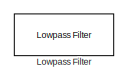
[diagram: root canvas - part 1/6, top center region]
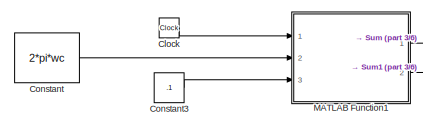
[diagram: root canvas - part 2/6, top center region]
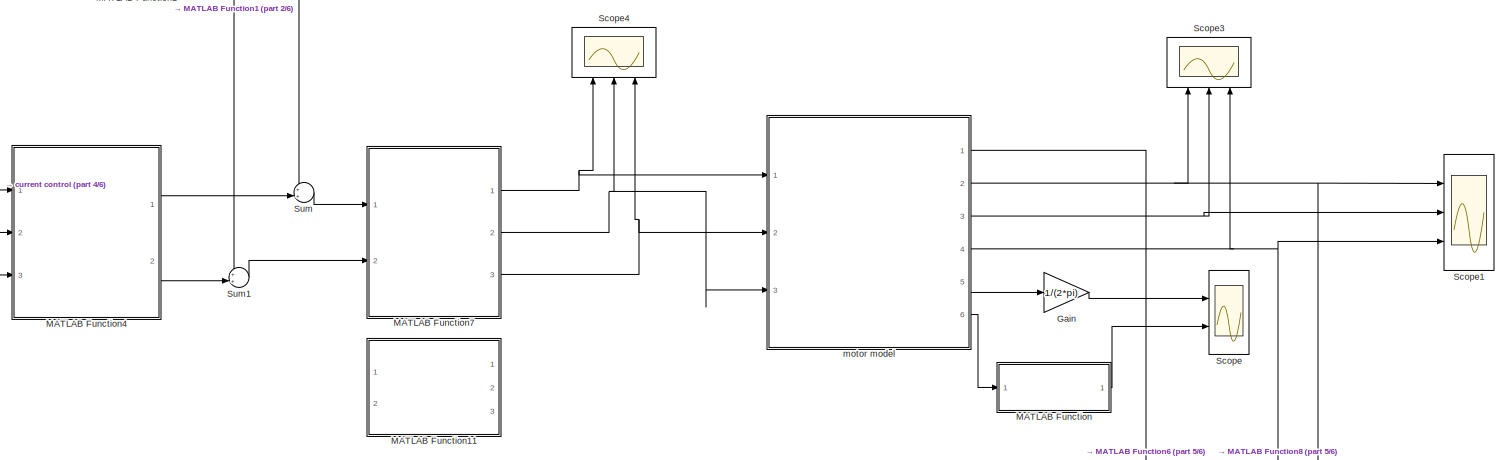
[diagram: root canvas - part 3/6, top right region]
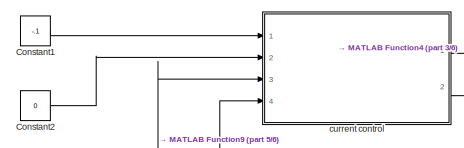
[diagram: root canvas - part 4/6, top left region]
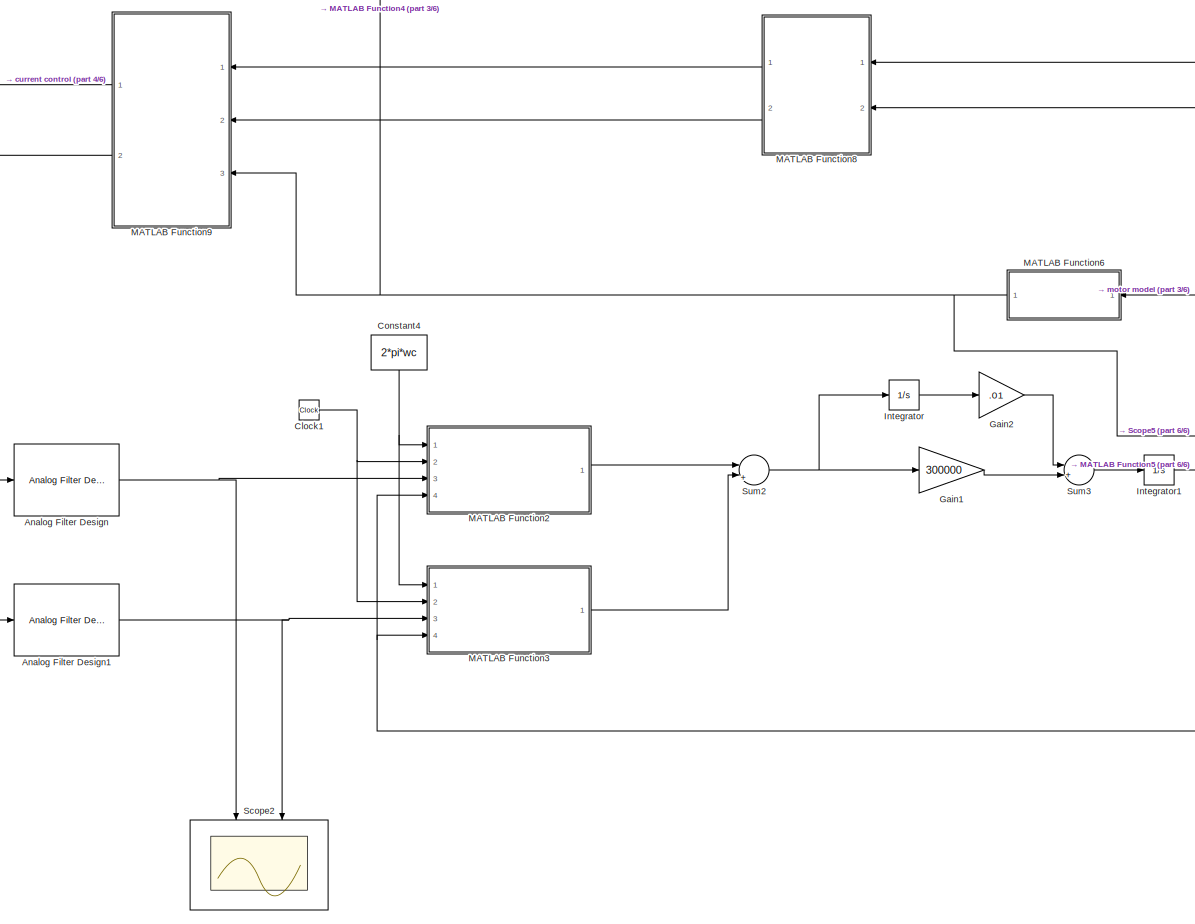
[diagram: root canvas - part 5/6, bottom center region]
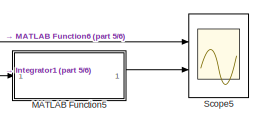
[diagram: root canvas - part 6/6, bottom right region]
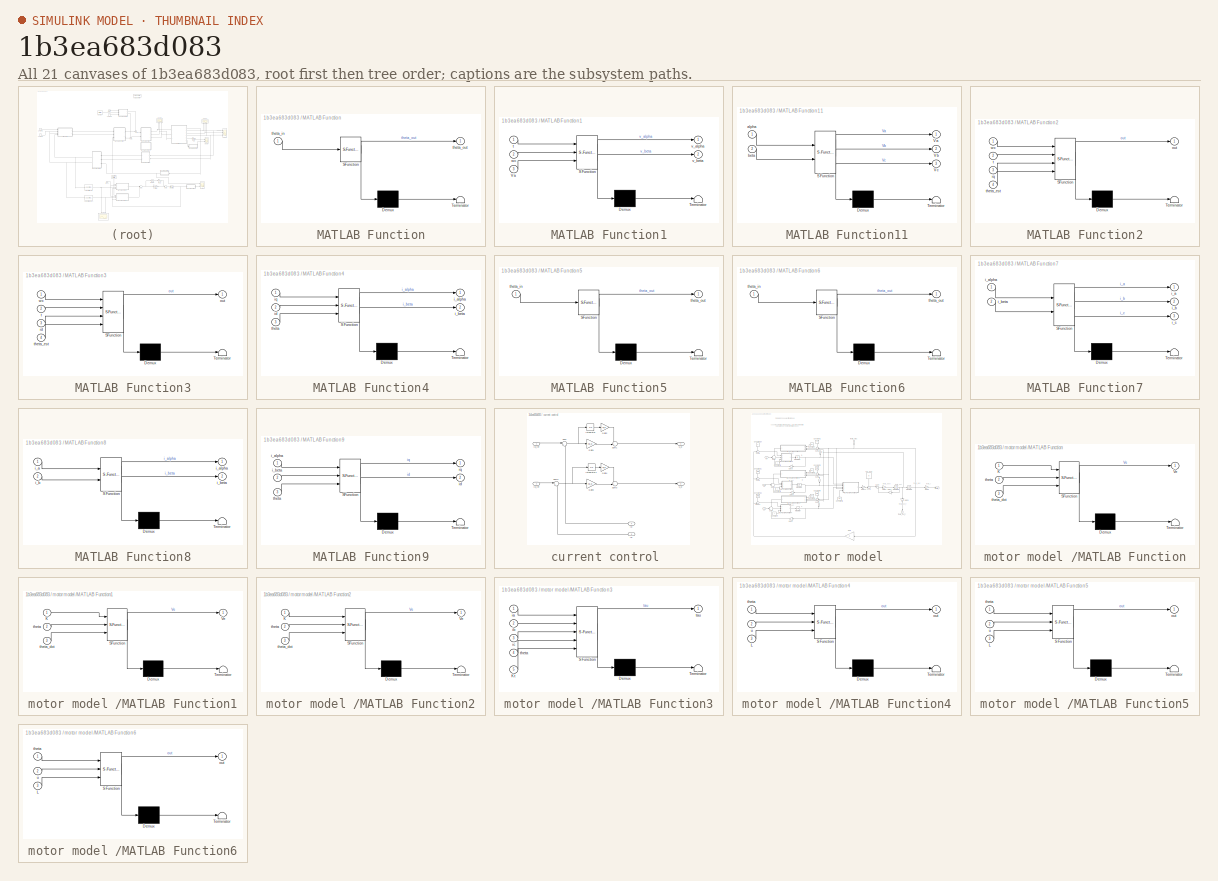
[diagram: thumbnail index - all 21 canvases of the model, root first then tree order]
MODEL slx_1b3ea683d083
KIND model
CONFIG AbsTol = auto
CONFIG FixedStep = .000001
CONFIG MaxStep = .00001
CONFIG MinStep = auto
CONFIG RelTol = 1e-3
CONFIG SampleTimeConstraint = Unconstrained
CONFIG Solver = FixedStepAuto
CONFIG SolverMode = Auto
CONFIG SolverName = FixedStepAuto
CONFIG StartTime = 0.0
CONFIG StopTime = .5
BLOCK [Reference] Analog Filter Design  REF=dsparch4/Analog
Filter Design
  Ports = [1, 1]
  SourceBlock = dsparch4/Analog\nFilter Design
  SourceType = Analog Filter Design
BLOCK [Reference] Analog Filter Design1  REF=dsparch4/Analog
Filter Design
  Ports = [1, 1]
  SourceBlock = dsparch4/Analog\nFilter Design
  SourceType = Analog Filter Design
BLOCK [Clock] Clock
  Decimation = 2000
BLOCK [Clock] Clock1
  Decimation = 10000
BLOCK [Constant] Constant
  Value = 2*pi*wc
BLOCK [Constant] Constant1
  Value = -.1
BLOCK [Constant] Constant2
  Value = 0
BLOCK [Constant] Constant3
  Value = .1
BLOCK [Constant] Constant4
  Value = 2*pi*wc
BLOCK [Gain] Gain
  Gain = 1/(2*pi)
  OutDataTypeStr = Inherit: Inherit via internal rule
  ParamDataTypeStr = Inherit: Inherit via internal rule
  SaturateOnIntegerOverflow = off
BLOCK [Gain] Gain1
  Gain = 300000
  OutDataTypeStr = Inherit: Inherit via internal rule
  ParamDataTypeStr = Inherit: Inherit via internal rule
  SaturateOnIntegerOverflow = off
BLOCK [Gain] Gain2
  Gain = .01
  OutDataTypeStr = Inherit: Inherit via internal rule
  ParamDataTypeStr = Inherit: Inherit via internal rule
  SaturateOnIntegerOverflow = off
BLOCK [Integrator] Integrator
  Ports = [1, 1]
BLOCK [Integrator] Integrator1
  Ports = [1, 1]
BLOCK [Reference] Lowpass Filter  REF=dspfdesign/Lowpass Filter
  Commented = on
  Ports = [1, 1]
  SourceBlock = dspfdesign/Lowpass Filter
  SourceType = dsp.LowpassFilter
BLOCK [SubSystem] MATLAB Function
  ErrorFcn = Stateflow.Translate.translate
  PermitHierarchicalResolution = ExplicitOnly
  Ports = [1, 1]
  RequestExecContextInheritance = off
  SFBlockType = MATLAB Function
  TreatAsAtomicUnit = on
  Variant = off
BLOCK [Demux] MATLAB Function/ Demux 
  Outputs = 1
  Ports = [1, 1]
BLOCK [S-Function] MATLAB Function/ SFunction 
  EnableBusSupport = on
  FunctionName = sf_sfun
  PortCounts = [1 2]
  Ports = [1, 2]
  SFunctionDeploymentMode = off
  Tag = Stateflow S-Function motor_sim_signal_injection 6
BLOCK [Terminator] MATLAB Function/ Terminator 
BLOCK [Inport] MATLAB Function/theta_in
  IconDisplay = Port number
BLOCK [Outport] MATLAB Function/theta_out
  IconDisplay = Port number
BLOCK [SubSystem] MATLAB Function1
  ErrorFcn = Stateflow.Translate.translate
  PermitHierarchicalResolution = ExplicitOnly
  Ports = [3, 2]
  RequestExecContextInheritance = off
  SFBlockType = MATLAB Function
  TreatAsAtomicUnit = on
  Variant = off
BLOCK [Demux] MATLAB Function1/ Demux 
  Outputs = 1
  Ports = [1, 1]
BLOCK [S-Function] MATLAB Function1/ SFunction 
  EnableBusSupport = on
  FunctionName = sf_sfun
  PortCounts = [3 3]
  Ports = [3, 3]
  SFunctionDeploymentMode = off
  Tag = Stateflow S-Function motor_sim_signal_injection 12
BLOCK [Terminator] MATLAB Function1/ Terminator 
BLOCK [Inport] MATLAB Function1/Va
  IconDisplay = Port number
  Port = 3
BLOCK [Inport] MATLAB Function1/t
  IconDisplay = Port number
BLOCK [Outport] MATLAB Function1/v_alpha
  IconDisplay = Port number
BLOCK [Outport] MATLAB Function1/v_beta
  IconDisplay = Port number
  Port = 2
BLOCK [Inport] MATLAB Function1/wc
  IconDisplay = Port number
  Port = 2
BLOCK [SubSystem] MATLAB Function11
  Commented = on
  ErrorFcn = Stateflow.Translate.translate
  PermitHierarchicalResolution = ExplicitOnly
  Ports = [2, 3]
  RequestExecContextInheritance = off
  SFBlockType = MATLAB Function
  TreatAsAtomicUnit = on
  Variant = off
BLOCK [Demux] MATLAB Function11/ Demux 
  Outputs = 1
  Ports = [1, 1]
BLOCK [S-Function] MATLAB Function11/ SFunction 
  EnableBusSupport = on
  FunctionName = sf_sfun
  PortCounts = [2 4]
  Ports = [2, 4]
  SFunctionDeploymentMode = off
  Tag = Stateflow S-Function motor_sim_signal_injection 16
BLOCK [Terminator] MATLAB Function11/ Terminator 
BLOCK [Outport] MATLAB Function11/Va
  IconDisplay = Port number
BLOCK [Outport] MATLAB Function11/Vb
  IconDisplay = Port number
  Port = 2
BLOCK [Outport] MATLAB Function11/Vc
  IconDisplay = Port number
  Port = 3
BLOCK [Inport] MATLAB Function11/alpha
  IconDisplay = Port number
BLOCK [Inport] MATLAB Function11/beta
  IconDisplay = Port number
  Port = 2
BLOCK [SubSystem] MATLAB Function2
  ErrorFcn = Stateflow.Translate.translate
  PermitHierarchicalResolution = ExplicitOnly
  Ports = [4, 1]
  RequestExecContextInheritance = off
  SFBlockType = MATLAB Function
  TreatAsAtomicUnit = on
  Variant = off
BLOCK [Demux] MATLAB Function2/ Demux 
  Outputs = 1
  Ports = [1, 1]
BLOCK [S-Function] MATLAB Function2/ SFunction 
  EnableBusSupport = on
  FunctionName = sf_sfun
  PortCounts = [4 2]
  Ports = [4, 2]
  SFunctionDeploymentMode = off
  Tag = Stateflow S-Function motor_sim_signal_injection 13
BLOCK [Terminator] MATLAB Function2/ Terminator 
BLOCK [Inport] MATLAB Function2/iq
  IconDisplay = Port number
  Port = 3
BLOCK [Outport] MATLAB Function2/out
  IconDisplay = Port number
BLOCK [Inport] MATLAB Function2/t
  IconDisplay = Port number
  Port = 2
BLOCK [Inport] MATLAB Function2/theta_est
  IconDisplay = Port number
  Port = 4
BLOCK [Inport] MATLAB Function2/wc
  IconDisplay = Port number
BLOCK [SubSystem] MATLAB Function3
  ErrorFcn = Stateflow.Translate.translate
  PermitHierarchicalResolution = ExplicitOnly
  Ports = [4, 1]
  RequestExecContextInheritance = off
  SFBlockType = MATLAB Function
  TreatAsAtomicUnit = on
  Variant = off
BLOCK [Demux] MATLAB Function3/ Demux 
  Outputs = 1
  Ports = [1, 1]
BLOCK [S-Function] MATLAB Function3/ SFunction 
  EnableBusSupport = on
  FunctionName = sf_sfun
  PortCounts = [4 2]
  Ports = [4, 2]
  SFunctionDeploymentMode = off
  Tag = Stateflow S-Function motor_sim_signal_injection 17
BLOCK [Terminator] MATLAB Function3/ Terminator 
BLOCK [Inport] MATLAB Function3/id
  IconDisplay = Port number
  Port = 3
BLOCK [Outport] MATLAB Function3/out
  IconDisplay = Port number
BLOCK [Inport] MATLAB Function3/t
  IconDisplay = Port number
  Port = 2
BLOCK [Inport] MATLAB Function3/theta_est
  IconDisplay = Port number
  Port = 4
BLOCK [Inport] MATLAB Function3/wc
  IconDisplay = Port number
BLOCK [SubSystem] MATLAB Function4
  ErrorFcn = Stateflow.Translate.translate
  PermitHierarchicalResolution = ExplicitOnly
  Ports = [3, 2]
  RequestExecContextInheritance = off
  SFBlockType = MATLAB Function
  TreatAsAtomicUnit = on
  Variant = off
BLOCK [Demux] MATLAB Function4/ Demux 
  Outputs = 1
  Ports = [1, 1]
BLOCK [S-Function] MATLAB Function4/ SFunction 
  EnableBusSupport = on
  FunctionName = sf_sfun
  PortCounts = [3 3]
  Ports = [3, 3]
  SFunctionDeploymentMode = off
  Tag = Stateflow S-Function motor_sim_signal_injection 5
BLOCK [Terminator] MATLAB Function4/ Terminator 
BLOCK [Outport] MATLAB Function4/i_alpha
  IconDisplay = Port number
BLOCK [Outport] MATLAB Function4/i_beta
  IconDisplay = Port number
  Port = 2
BLOCK [Inport] MATLAB Function4/id
  IconDisplay = Port number
  Port = 2
BLOCK [Inport] MATLAB Function4/iq
  IconDisplay = Port number
BLOCK [Inport] MATLAB Function4/theta
  IconDisplay = Port number
  Port = 3
BLOCK [SubSystem] MATLAB Function5
  ErrorFcn = Stateflow.Translate.translate
  PermitHierarchicalResolution = ExplicitOnly
  Ports = [1, 1]
  RequestExecContextInheritance = off
  SFBlockType = MATLAB Function
  TreatAsAtomicUnit = on
  Variant = off
BLOCK [Demux] MATLAB Function5/ Demux 
  Outputs = 1
  Ports = [1, 1]
BLOCK [S-Function] MATLAB Function5/ SFunction 
  EnableBusSupport = on
  FunctionName = sf_sfun
  PortCounts = [1 2]
  Ports = [1, 2]
  SFunctionDeploymentMode = off
  Tag = Stateflow S-Function motor_sim_signal_injection 18
BLOCK [Terminator] MATLAB Function5/ Terminator 
BLOCK [Inport] MATLAB Function5/theta_in
  IconDisplay = Port number
BLOCK [Outport] MATLAB Function5/theta_out
  IconDisplay = Port number
BLOCK [SubSystem] MATLAB Function6
  ErrorFcn = Stateflow.Translate.translate
  PermitHierarchicalResolution = ExplicitOnly
  Ports = [1, 1]
  RequestExecContextInheritance = off
  SFBlockType = MATLAB Function
  TreatAsAtomicUnit = on
  Variant = off
BLOCK [Demux] MATLAB Function6/ Demux 
  Outputs = 1
  Ports = [1, 1]
BLOCK [S-Function] MATLAB Function6/ SFunction 
  EnableBusSupport = on
  FunctionName = sf_sfun
  PortCounts = [1 2]
  Ports = [1, 2]
  SFunctionDeploymentMode = off
  Tag = Stateflow S-Function motor_sim_signal_injection 14
BLOCK [Terminator] MATLAB Function6/ Terminator 
BLOCK [Inport] MATLAB Function6/theta_in
  IconDisplay = Port number
BLOCK [Outport] MATLAB Function6/theta_out
  IconDisplay = Port number
BLOCK [SubSystem] MATLAB Function7
  ErrorFcn = Stateflow.Translate.translate
  PermitHierarchicalResolution = ExplicitOnly
  Ports = [2, 3]
  RequestExecContextInheritance = off
  SFBlockType = MATLAB Function
  TreatAsAtomicUnit = on
  Variant = off
BLOCK [Demux] MATLAB Function7/ Demux 
  Outputs = 1
  Ports = [1, 1]
BLOCK [S-Function] MATLAB Function7/ SFunction 
  EnableBusSupport = on
  FunctionName = sf_sfun
  PortCounts = [2 4]
  Ports = [2, 4]
  SFunctionDeploymentMode = off
  Tag = Stateflow S-Function motor_sim_signal_injection 8
BLOCK [Terminator] MATLAB Function7/ Terminator 
BLOCK [Outport] MATLAB Function7/i_a
  IconDisplay = Port number
BLOCK [Inport] MATLAB Function7/i_alpha
  IconDisplay = Port number
BLOCK [Outport] MATLAB Function7/i_b
  IconDisplay = Port number
  Port = 2
BLOCK [Inport] MATLAB Function7/i_beta
  IconDisplay = Port number
  Port = 2
BLOCK [Outport] MATLAB Function7/i_c
  IconDisplay = Port number
  Port = 3
BLOCK [SubSystem] MATLAB Function8
  ErrorFcn = Stateflow.Translate.translate
  PermitHierarchicalResolution = ExplicitOnly
  Ports = [2, 2]
  RequestExecContextInheritance = off
  SFBlockType = MATLAB Function
  TreatAsAtomicUnit = on
  Variant = off
BLOCK [Demux] MATLAB Function8/ Demux 
  Outputs = 1
  Ports = [1, 1]
BLOCK [S-Function] MATLAB Function8/ SFunction 
  EnableBusSupport = on
  FunctionName = sf_sfun
  PortCounts = [2 3]
  Ports = [2, 3]
  SFunctionDeploymentMode = off
  Tag = Stateflow S-Function motor_sim_signal_injection 9
BLOCK [Terminator] MATLAB Function8/ Terminator 
BLOCK [Inport] MATLAB Function8/i_a
  IconDisplay = Port number
BLOCK [Outport] MATLAB Function8/i_alpha
  IconDisplay = Port number
BLOCK [Inport] MATLAB Function8/i_b
  IconDisplay = Port number
  Port = 2
BLOCK [Outport] MATLAB Function8/i_beta
  IconDisplay = Port number
  Port = 2
BLOCK [SubSystem] MATLAB Function9
  ErrorFcn = Stateflow.Translate.translate
  PermitHierarchicalResolution = ExplicitOnly
  Ports = [3, 2]
  RequestExecContextInheritance = off
  SFBlockType = MATLAB Function
  TreatAsAtomicUnit = on
  Variant = off
BLOCK [Demux] MATLAB Function9/ Demux 
  Outputs = 1
  Ports = [1, 1]
BLOCK [S-Function] MATLAB Function9/ SFunction 
  EnableBusSupport = on
  FunctionName = sf_sfun
  PortCounts = [3 3]
  Ports = [3, 3]
  SFunctionDeploymentMode = off
  Tag = Stateflow S-Function motor_sim_signal_injection 10
BLOCK [Terminator] MATLAB Function9/ Terminator 
BLOCK [Inport] MATLAB Function9/i_alpha
  IconDisplay = Port number
BLOCK [Inport] MATLAB Function9/i_beta
  IconDisplay = Port number
  Port = 2
BLOCK [Outport] MATLAB Function9/id
  IconDisplay = Port number
  Port = 2
BLOCK [Outport] MATLAB Function9/iq
  IconDisplay = Port number
BLOCK [Inport] MATLAB Function9/theta
  IconDisplay = Port number
  Port = 3
BLOCK [Scope] Scope
  NumInputPorts = 2
  Ports = [2]
  ScopeSpecificationString = Simulink.scopes.TimeScopeBlockCfg('CurrentConfiguration', extmgr.ConfigurationSet(extmgr.Configuration('Core','General UI',true),extmgr.Configuration('Core','Source UI',true),extmgr.Configuration('Sources','WiredSimulink',true),extmgr.Configuration('Visuals','Time Domain',true,'SerializedDisplays',{struct('MinYLimReal','-4.62643','MaxYLimReal','5.64171','YLabelReal','','MinYLimMag','0.00000','MaxY...<+1424ch>
BLOCK [Scope] Scope1
  NumInputPorts = 3
  Ports = [3]
  ScopeSpecificationString = Simulink.scopes.TimeScopeBlockCfg('CurrentConfiguration', extmgr.ConfigurationSet(extmgr.Configuration('Core','General UI',true),extmgr.Configuration('Core','Source UI',true),extmgr.Configuration('Sources','WiredSimulink',true,'DataLoggingVariableName','ScopeData1'),extmgr.Configuration('Visuals','Time Domain',true,'SerializedDisplays',{struct('MinYLimReal','-0.03348','MaxYLimReal','0.03159','YLab...<+1509ch>
BLOCK [Scope] Scope2
  NumInputPorts = 2
  Ports = [2]
  ScopeSpecificationString = Simulink.scopes.TimeScopeBlockCfg('CurrentConfiguration', extmgr.ConfigurationSet(extmgr.Configuration('Core','General UI',true),extmgr.Configuration('Core','Source UI',true),extmgr.Configuration('Sources','WiredSimulink',true,'DataLoggingVariableName','ScopeData1'),extmgr.Configuration('Visuals','Time Domain',true,'SerializedDisplays',{struct('MinYLimReal','-0.01135','MaxYLimReal','0.01137','YLab...<+1507ch>
BLOCK [Scope] Scope3
  NumInputPorts = 3
  Ports = [3]
  ScopeSpecificationString = Simulink.scopes.TimeScopeBlockCfg('CurrentConfiguration', extmgr.ConfigurationSet(extmgr.Configuration('Core','General UI',true),extmgr.Configuration('Core','Source UI',true),extmgr.Configuration('Sources','WiredSimulink',true,'DataLoggingVariableName','ScopeData1'),extmgr.Configuration('Visuals','Time Domain',true,'SerializedDisplays',{struct('MinYLimReal','-1.26065','MaxYLimReal','7.53281','YLab...<+1470ch>
BLOCK [Scope] Scope4
  NumInputPorts = 3
  Ports = [3]
  ScopeSpecificationString = Simulink.scopes.TimeScopeBlockCfg('CurrentConfiguration', extmgr.ConfigurationSet(extmgr.Configuration('Core','General UI',true),extmgr.Configuration('Core','Source UI',true),extmgr.Configuration('Sources','WiredSimulink',true,'DataLoggingVariableName','ScopeData2'),extmgr.Configuration('Visuals','Time Domain',true,'SerializedDisplays',{struct('MinYLimReal','-0.90736','MaxYLimReal','0.87892','YLab...<+1503ch>
BLOCK [Scope] Scope5
  NumInputPorts = 2
  Ports = [2]
  ScopeSpecificationString = Simulink.scopes.TimeScopeBlockCfg('CurrentConfiguration', extmgr.ConfigurationSet(extmgr.Configuration('Core','General UI',true),extmgr.Configuration('Core','Source UI',true),extmgr.Configuration('Sources','WiredSimulink',true,'DataLoggingVariableName','ScopeData2'),extmgr.Configuration('Visuals','Time Domain',true,'SerializedDisplays',{struct('MinYLimReal','-3.92699','MaxYLimReal','3.92698','YLab...<+1472ch>
BLOCK [Sum] Sum
  IconShape = round
  InputSameDT = off
  Inputs = ++|
  OutDataTypeStr = Inherit: Inherit via internal rule
  Ports = [2, 1]
  SaturateOnIntegerOverflow = off
BLOCK [Sum] Sum1
  IconShape = round
  InputSameDT = off
  Inputs = ++|
  OutDataTypeStr = Inherit: Inherit via internal rule
  Ports = [2, 1]
  SaturateOnIntegerOverflow = off
BLOCK [Sum] Sum2
  IconShape = round
  InputSameDT = off
  Inputs = ||+-|
  OutDataTypeStr = Inherit: Inherit via internal rule
  Ports = [2, 1]
  SaturateOnIntegerOverflow = off
BLOCK [Sum] Sum3
  IconShape = round
  InputSameDT = off
  Inputs = |++||
  OutDataTypeStr = Inherit: Inherit via internal rule
  Ports = [2, 1]
  SaturateOnIntegerOverflow = off
BLOCK [SubSystem] current control 
  Ports = [4, 2]
  RequestExecContextInheritance = off
  Variant = off
BLOCK [Gain] current control /Gain1
  Gain = Kp_q
  OutDataTypeStr = Inherit: Inherit via internal rule
  ParamDataTypeStr = Inherit: Inherit via internal rule
  SaturateOnIntegerOverflow = off
BLOCK [Gain] current control /Gain2
  Gain = Ki_q
  OutDataTypeStr = Inherit: Inherit via internal rule
  ParamDataTypeStr = Inherit: Inherit via internal rule
  SaturateOnIntegerOverflow = off
BLOCK [Gain] current control /Gain3
  Gain = Kp_d
  OutDataTypeStr = Inherit: Inherit via internal rule
  ParamDataTypeStr = Inherit: Inherit via internal rule
  SaturateOnIntegerOverflow = off
BLOCK [Gain] current control /Gain4
  Gain = Ki_d
  OutDataTypeStr = Inherit: Inherit via internal rule
  ParamDataTypeStr = Inherit: Inherit via internal rule
  SaturateOnIntegerOverflow = off
BLOCK [Inport] current control /Id
  IconDisplay = Port number
  Port = 3
BLOCK [Inport] current control /Id_ref
  IconDisplay = Port number
  Port = 2
BLOCK [Integrator] current control /Integrator
  Ports = [1, 1]
BLOCK [Integrator] current control /Integrator1
  Ports = [1, 1]
BLOCK [Inport] current control /Iq
  IconDisplay = Port number
  Port = 4
BLOCK [Inport] current control /Iq_ref
  IconDisplay = Port number
BLOCK [Sum] current control /Sum
  IconShape = round
  InputSameDT = off
  Inputs = |+-
  OutDataTypeStr = Inherit: Inherit via internal rule
  Ports = [2, 1]
  SaturateOnIntegerOverflow = off
BLOCK [Sum] current control /Sum1
  IconShape = round
  InputSameDT = off
  Inputs = ++|
  OutDataTypeStr = Inherit: Inherit via internal rule
  Ports = [2, 1]
  SaturateOnIntegerOverflow = off
BLOCK [Sum] current control /Sum2
  IconShape = round
  InputSameDT = off
  Inputs = |+-
  OutDataTypeStr = Inherit: Inherit via internal rule
  Ports = [2, 1]
  SaturateOnIntegerOverflow = off
BLOCK [Sum] current control /Sum3
  IconShape = round
  InputSameDT = off
  Inputs = ++|
  OutDataTypeStr = Inherit: Inherit via internal rule
  Ports = [2, 1]
  SaturateOnIntegerOverflow = off
BLOCK [Outport] current control /u_d
  IconDisplay = Port number
  Port = 2
BLOCK [Outport] current control /u_q
  IconDisplay = Port number
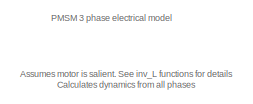
[diagram: motor model  - part 1/4, top left region]
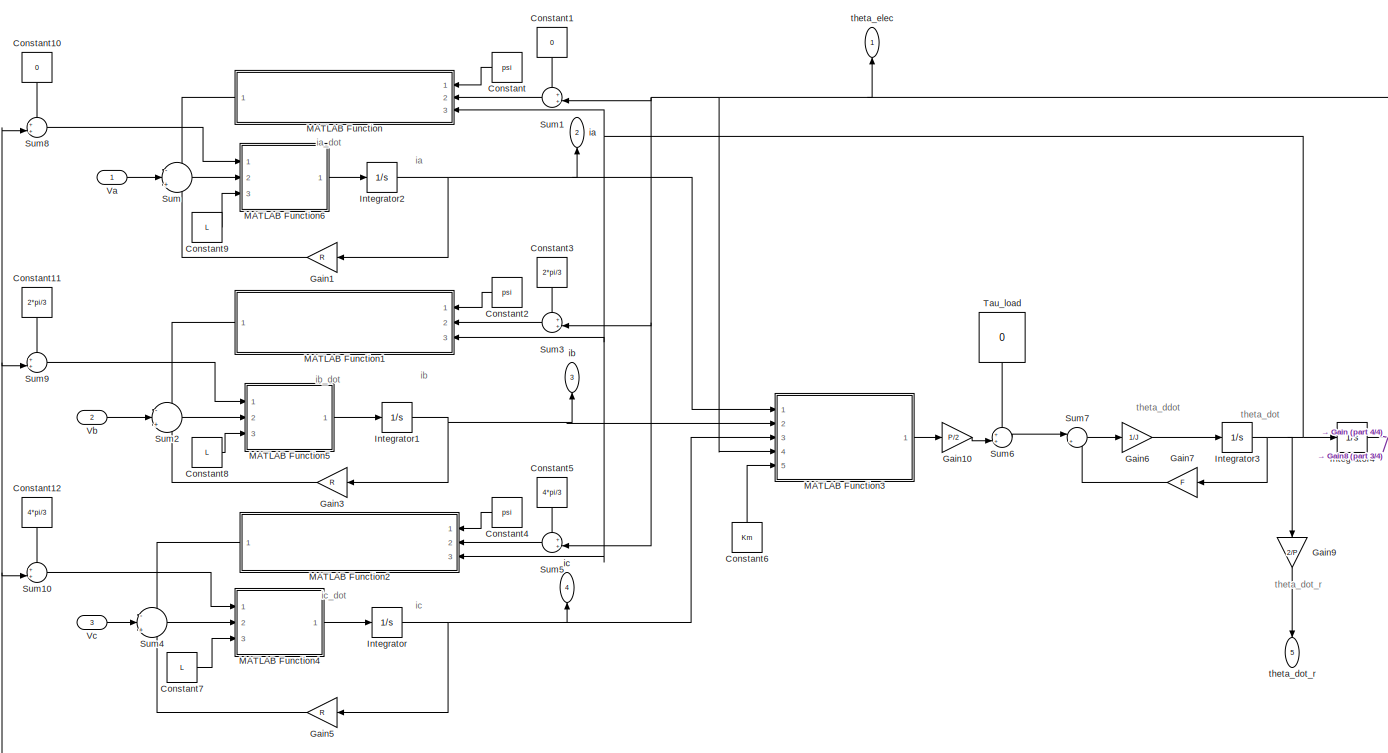
[diagram: motor model  - part 2/4, full width, middle band]
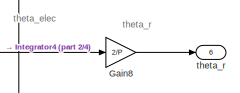
[diagram: motor model  - part 3/4, middle right region]
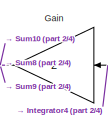
[diagram: motor model  - part 4/4, bottom center region]
BLOCK [SubSystem] motor model 
  Ports = [3, 6]
  RequestExecContextInheritance = off
  Variant = off
BLOCK [Outport] motor model / theta_elec 
  IconDisplay = Port number
BLOCK [Constant] motor model /Constant
  Value = psi
BLOCK [Constant] motor model /Constant1
  Value = 0
BLOCK [Constant] motor model /Constant10
  Value = 0
BLOCK [Constant] motor model /Constant11
  Value = 2*pi/3
BLOCK [Constant] motor model /Constant12
  Value = 4*pi/3
BLOCK [Constant] motor model /Constant2
  Value = psi
BLOCK [Constant] motor model /Constant3
  Value = 2*pi/3
BLOCK [Constant] motor model /Constant4
  Value = psi
BLOCK [Constant] motor model /Constant5
  Value = 4*pi/3
BLOCK [Constant] motor model /Constant6
  Value = Km
BLOCK [Constant] motor model /Constant7
  Value = L
BLOCK [Constant] motor model /Constant8
  Value = L
BLOCK [Constant] motor model /Constant9
  Value = L
BLOCK [Gain] motor model /Gain
  Gain = 2
  OutDataTypeStr = Inherit: Inherit via internal rule
  ParamDataTypeStr = Inherit: Inherit via internal rule
  SaturateOnIntegerOverflow = off
BLOCK [Gain] motor model /Gain1
  Gain = R
  OutDataTypeStr = Inherit: Inherit via internal rule
  ParamDataTypeStr = Inherit: Inherit via internal rule
  SaturateOnIntegerOverflow = off
BLOCK [Gain] motor model /Gain10
  Gain = P/2
  OutDataTypeStr = Inherit: Inherit via internal rule
  ParamDataTypeStr = Inherit: Inherit via internal rule
  SaturateOnIntegerOverflow = off
BLOCK [Gain] motor model /Gain3
  Gain = R
  OutDataTypeStr = Inherit: Inherit via internal rule
  ParamDataTypeStr = Inherit: Inherit via internal rule
  SaturateOnIntegerOverflow = off
BLOCK [Gain] motor model /Gain5
  Gain = R
  OutDataTypeStr = Inherit: Inherit via internal rule
  ParamDataTypeStr = Inherit: Inherit via internal rule
  SaturateOnIntegerOverflow = off
BLOCK [Gain] motor model /Gain6
  Gain = 1/J
  OutDataTypeStr = Inherit: Inherit via internal rule
  ParamDataTypeStr = Inherit: Inherit via internal rule
  SaturateOnIntegerOverflow = off
BLOCK [Gain] motor model /Gain7
  Gain = F
  OutDataTypeStr = Inherit: Inherit via internal rule
  ParamDataTypeStr = Inherit: Inherit via internal rule
  SaturateOnIntegerOverflow = off
BLOCK [Gain] motor model /Gain8
  Gain = 2/P
  OutDataTypeStr = Inherit: Inherit via internal rule
  ParamDataTypeStr = Inherit: Inherit via internal rule
  SaturateOnIntegerOverflow = off
BLOCK [Gain] motor model /Gain9
  Gain = 2/P
  OutDataTypeStr = Inherit: Inherit via internal rule
  ParamDataTypeStr = Inherit: Inherit via internal rule
  SaturateOnIntegerOverflow = off
BLOCK [Integrator] motor model /Integrator
  Ports = [1, 1]
BLOCK [Integrator] motor model /Integrator1
  Ports = [1, 1]
BLOCK [Integrator] motor model /Integrator2
  Ports = [1, 1]
BLOCK [Integrator] motor model /Integrator3
  Ports = [1, 1]
BLOCK [Integrator] motor model /Integrator4
  Ports = [1, 1]
BLOCK [SubSystem] motor model /MATLAB Function
  ErrorFcn = Stateflow.Translate.translate
  PermitHierarchicalResolution = ExplicitOnly
  Ports = [3, 1]
  RequestExecContextInheritance = off
  SFBlockType = MATLAB Function
  TreatAsAtomicUnit = on
  Variant = off
BLOCK [Demux] motor model /MATLAB Function/ Demux 
  Outputs = 1
  Ports = [1, 1]
BLOCK [S-Function] motor model /MATLAB Function/ SFunction 
  EnableBusSupport = on
  FunctionName = sf_sfun
  PortCounts = [3 2]
  Ports = [3, 2]
  SFunctionDeploymentMode = off
  Tag = Stateflow S-Function motor_sim_signal_injection 2
BLOCK [Terminator] motor model /MATLAB Function/ Terminator 
BLOCK [Inport] motor model /MATLAB Function/K
  IconDisplay = Port number
BLOCK [Outport] motor model /MATLAB Function/Ve
  IconDisplay = Port number
BLOCK [Inport] motor model /MATLAB Function/theta
  IconDisplay = Port number
  Port = 2
BLOCK [Inport] motor model /MATLAB Function/theta_dot
  IconDisplay = Port number
  Port = 3
BLOCK [SubSystem] motor model /MATLAB Function1
  ErrorFcn = Stateflow.Translate.translate
  PermitHierarchicalResolution = ExplicitOnly
  Ports = [3, 1]
  RequestExecContextInheritance = off
  SFBlockType = MATLAB Function
  TreatAsAtomicUnit = on
  Variant = off
BLOCK [Demux] motor model /MATLAB Function1/ Demux 
  Outputs = 1
  Ports = [1, 1]
BLOCK [S-Function] motor model /MATLAB Function1/ SFunction 
  EnableBusSupport = on
  FunctionName = sf_sfun
  PortCounts = [3 2]
  Ports = [3, 2]
  SFunctionDeploymentMode = off
  Tag = Stateflow S-Function motor_sim_signal_injection 1
BLOCK [Terminator] motor model /MATLAB Function1/ Terminator 
BLOCK [Inport] motor model /MATLAB Function1/K
  IconDisplay = Port number
BLOCK [Outport] motor model /MATLAB Function1/Ve
  IconDisplay = Port number
BLOCK [Inport] motor model /MATLAB Function1/theta
  IconDisplay = Port number
  Port = 2
BLOCK [Inport] motor model /MATLAB Function1/theta_dot
  IconDisplay = Port number
  Port = 3
BLOCK [SubSystem] motor model /MATLAB Function2
  ErrorFcn = Stateflow.Translate.translate
  PermitHierarchicalResolution = ExplicitOnly
  Ports = [3, 1]
  RequestExecContextInheritance = off
  SFBlockType = MATLAB Function
  TreatAsAtomicUnit = on
  Variant = off
BLOCK [Demux] motor model /MATLAB Function2/ Demux 
  Outputs = 1
  Ports = [1, 1]
BLOCK [S-Function] motor model /MATLAB Function2/ SFunction 
  EnableBusSupport = on
  FunctionName = sf_sfun
  PortCounts = [3 2]
  Ports = [3, 2]
  SFunctionDeploymentMode = off
  Tag = Stateflow S-Function motor_sim_signal_injection 3
BLOCK [Terminator] motor model /MATLAB Function2/ Terminator 
BLOCK [Inport] motor model /MATLAB Function2/K
  IconDisplay = Port number
BLOCK [Outport] motor model /MATLAB Function2/Ve
  IconDisplay = Port number
BLOCK [Inport] motor model /MATLAB Function2/theta
  IconDisplay = Port number
  Port = 2
BLOCK [Inport] motor model /MATLAB Function2/theta_dot
  IconDisplay = Port number
  Port = 3
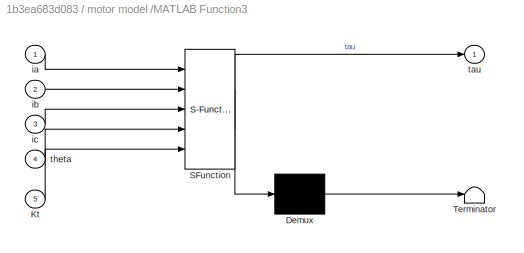
BLOCK [SubSystem] motor model /MATLAB Function3
  ErrorFcn = Stateflow.Translate.translate
  PermitHierarchicalResolution = ExplicitOnly
  Ports = [5, 1]
  RequestExecContextInheritance = off
  SFBlockType = MATLAB Function
  TreatAsAtomicUnit = on
  Variant = off
BLOCK [Demux] motor model /MATLAB Function3/ Demux 
  Outputs = 1
  Ports = [1, 1]
BLOCK [S-Function] motor model /MATLAB Function3/ SFunction 
  EnableBusSupport = on
  FunctionName = sf_sfun
  PortCounts = [5 2]
  Ports = [5, 2]
  SFunctionDeploymentMode = off
  Tag = Stateflow S-Function motor_sim_signal_injection 4
BLOCK [Terminator] motor model /MATLAB Function3/ Terminator 
BLOCK [Inport] motor model /MATLAB Function3/Kt
  IconDisplay = Port number
  Port = 5
BLOCK [Inport] motor model /MATLAB Function3/ia
  IconDisplay = Port number
BLOCK [Inport] motor model /MATLAB Function3/ib
  IconDisplay = Port number
  Port = 2
BLOCK [Inport] motor model /MATLAB Function3/ic
  IconDisplay = Port number
  Port = 3
BLOCK [Outport] motor model /MATLAB Function3/tau
  IconDisplay = Port number
BLOCK [Inport] motor model /MATLAB Function3/theta
  IconDisplay = Port number
  Port = 4
BLOCK [SubSystem] motor model /MATLAB Function4
  ErrorFcn = Stateflow.Translate.translate
  PermitHierarchicalResolution = ExplicitOnly
  Ports = [3, 1]
  RequestExecContextInheritance = off
  SFBlockType = MATLAB Function
  TreatAsAtomicUnit = on
  Variant = off
BLOCK [Demux] motor model /MATLAB Function4/ Demux 
  Outputs = 1
  Ports = [1, 1]
BLOCK [S-Function] motor model /MATLAB Function4/ SFunction 
  EnableBusSupport = on
  FunctionName = sf_sfun
  PortCounts = [3 2]
  Ports = [3, 2]
  SFunctionDeploymentMode = off
  Tag = Stateflow S-Function motor_sim_signal_injection 15
BLOCK [Terminator] motor model /MATLAB Function4/ Terminator 
BLOCK [Inport] motor model /MATLAB Function4/L
  IconDisplay = Port number
  Port = 3
BLOCK [Outport] motor model /MATLAB Function4/out
  IconDisplay = Port number
BLOCK [Inport] motor model /MATLAB Function4/theta
  IconDisplay = Port number
BLOCK [Inport] motor model /MATLAB Function4/u
  IconDisplay = Port number
  Port = 2
BLOCK [SubSystem] motor model /MATLAB Function5
  ErrorFcn = Stateflow.Translate.translate
  PermitHierarchicalResolution = ExplicitOnly
  Ports = [3, 1]
  RequestExecContextInheritance = off
  SFBlockType = MATLAB Function
  TreatAsAtomicUnit = on
  Variant = off
BLOCK [Demux] motor model /MATLAB Function5/ Demux 
  Outputs = 1
  Ports = [1, 1]
BLOCK [S-Function] motor model /MATLAB Function5/ SFunction 
  EnableBusSupport = on
  FunctionName = sf_sfun
  PortCounts = [3 2]
  Ports = [3, 2]
  SFunctionDeploymentMode = off
  Tag = Stateflow S-Function motor_sim_signal_injection 7
BLOCK [Terminator] motor model /MATLAB Function5/ Terminator 
BLOCK [Inport] motor model /MATLAB Function5/L
  IconDisplay = Port number
  Port = 3
BLOCK [Outport] motor model /MATLAB Function5/out
  IconDisplay = Port number
BLOCK [Inport] motor model /MATLAB Function5/theta
  IconDisplay = Port number
BLOCK [Inport] motor model /MATLAB Function5/u
  IconDisplay = Port number
  Port = 2
BLOCK [SubSystem] motor model /MATLAB Function6
  ErrorFcn = Stateflow.Translate.translate
  PermitHierarchicalResolution = ExplicitOnly
  Ports = [3, 1]
  RequestExecContextInheritance = off
  SFBlockType = MATLAB Function
  TreatAsAtomicUnit = on
  Variant = off
BLOCK [Demux] motor model /MATLAB Function6/ Demux 
  Outputs = 1
  Ports = [1, 1]
BLOCK [S-Function] motor model /MATLAB Function6/ SFunction 
  EnableBusSupport = on
  FunctionName = sf_sfun
  PortCounts = [3 2]
  Ports = [3, 2]
  SFunctionDeploymentMode = off
  Tag = Stateflow S-Function motor_sim_signal_injection 11
BLOCK [Terminator] motor model /MATLAB Function6/ Terminator 
BLOCK [Inport] motor model /MATLAB Function6/L
  IconDisplay = Port number
  Port = 3
BLOCK [Outport] motor model /MATLAB Function6/out
  IconDisplay = Port number
BLOCK [Inport] motor model /MATLAB Function6/theta
  IconDisplay = Port number
BLOCK [Inport] motor model /MATLAB Function6/u
  IconDisplay = Port number
  Port = 2
BLOCK [Sum] motor model /Sum
  IconShape = round
  InputSameDT = off
  Inputs = -|+|-
  OutDataTypeStr = Inherit: Inherit via internal rule
  Ports = [3, 1]
  SaturateOnIntegerOverflow = off
BLOCK [Sum] motor model /Sum1
  IconShape = round
  InputSameDT = off
  Inputs = ++|
  OutDataTypeStr = Inherit: Inherit via internal rule
  Ports = [2, 1]
  SaturateOnIntegerOverflow = off
BLOCK [Sum] motor model /Sum10
  IconShape = round
  InputSameDT = off
  Inputs = ++|
  OutDataTypeStr = Inherit: Inherit via internal rule
  Ports = [2, 1]
  SaturateOnIntegerOverflow = off
BLOCK [Sum] motor model /Sum2
  IconShape = round
  InputSameDT = off
  Inputs = -|+|-
  OutDataTypeStr = Inherit: Inherit via internal rule
  Ports = [3, 1]
  SaturateOnIntegerOverflow = off
BLOCK [Sum] motor model /Sum3
  IconShape = round
  InputSameDT = off
  Inputs = ++|
  OutDataTypeStr = Inherit: Inherit via internal rule
  Ports = [2, 1]
  SaturateOnIntegerOverflow = off
BLOCK [Sum] motor model /Sum4
  IconShape = round
  InputSameDT = off
  Inputs = -|+|-
  OutDataTypeStr = Inherit: Inherit via internal rule
  Ports = [3, 1]
  SaturateOnIntegerOverflow = off
BLOCK [Sum] motor model /Sum5
  IconShape = round
  InputSameDT = off
  Inputs = ++|
  OutDataTypeStr = Inherit: Inherit via internal rule
  Ports = [2, 1]
  SaturateOnIntegerOverflow = off
BLOCK [Sum] motor model /Sum6
  IconShape = round
  InputSameDT = off
  Inputs = ++|
  OutDataTypeStr = Inherit: Inherit via internal rule
  Ports = [2, 1]
  SaturateOnIntegerOverflow = off
BLOCK [Sum] motor model /Sum7
  IconShape = round
  InputSameDT = off
  Inputs = |+-
  OutDataTypeStr = Inherit: Inherit via internal rule
  Ports = [2, 1]
  SaturateOnIntegerOverflow = off
BLOCK [Sum] motor model /Sum8
  IconShape = round
  InputSameDT = off
  Inputs = ++|
  OutDataTypeStr = Inherit: Inherit via internal rule
  Ports = [2, 1]
  SaturateOnIntegerOverflow = off
BLOCK [Sum] motor model /Sum9
  IconShape = round
  InputSameDT = off
  Inputs = ++|
  OutDataTypeStr = Inherit: Inherit via internal rule
  Ports = [2, 1]
  SaturateOnIntegerOverflow = off
BLOCK [Constant] motor model /Tau_load
  Value = 0
BLOCK [Inport] motor model /Va 
  IconDisplay = Port number
BLOCK [Inport] motor model /Vb
  IconDisplay = Port number
  Port = 2
BLOCK [Inport] motor model /Vc
  IconDisplay = Port number
  Port = 3
BLOCK [Outport] motor model /ia
  IconDisplay = Port number
  Port = 2
BLOCK [Outport] motor model /ib
  IconDisplay = Port number
  Port = 3
BLOCK [Outport] motor model /ic
  IconDisplay = Port number
  Port = 4
BLOCK [Outport] motor model /theta_dot_r
  IconDisplay = Port number
  Port = 5
BLOCK [Outport] motor model /theta_r
  IconDisplay = Port number
  Port = 6
ANNOTATION motor model : Assumes motor is salient. See inv_L functions for details Calculates dynamics from all phases
ANNOTATION motor model : PMSM 3 phase electrical model
ANNOTATION motor model : ia
ANNOTATION motor model : ia_dot
ANNOTATION motor model : ib
ANNOTATION motor model : ib_dot
ANNOTATION motor model : ic
ANNOTATION motor model : ic_dot
ANNOTATION motor model : theta_ddot
ANNOTATION motor model : theta_dot
ANNOTATION motor model : theta_dot_r
ANNOTATION motor model : theta_elec
ANNOTATION motor model : theta_r
NET Analog Filter Design1:1 -> MATLAB Function3:3, Scope2:2
NET Analog Filter Design:1 -> MATLAB Function2:3, Scope2:1
NET Clock1:1 -> MATLAB Function2:2, MATLAB Function3:2
LINE Clock:1 -> MATLAB Function1:1
LINE Constant1:1 -> current control :1
LINE Constant2:1 -> current control :2
LINE Constant3:1 -> MATLAB Function1:3
NET Constant4:1 -> MATLAB Function2:1, MATLAB Function3:1
LINE Constant:1 -> MATLAB Function1:2
LINE Gain1:1 -> Sum3:2
LINE Gain2:1 -> Sum3:1
LINE Gain:1 -> Scope:1
NET Integrator1:1 -> MATLAB Function2:4, MATLAB Function3:4, MATLAB Function5:1
LINE Integrator:1 -> Gain2:1
LINE MATLAB Function1:1 -> Sum:1
LINE MATLAB Function1:2 -> Sum1:1
LINE MATLAB Function2:1 -> Sum2:1
LINE MATLAB Function3:1 -> Sum2:2
LINE MATLAB Function4:1 -> Sum:2
LINE MATLAB Function4:2 -> Sum1:2
LINE MATLAB Function5:1 -> Scope5:2
NET MATLAB Function6:1 -> MATLAB Function4:3, MATLAB Function9:3, Scope5:1
NET MATLAB Function7:1 -> Scope4:1, motor model :1
NET MATLAB Function7:2 -> Scope4:2, motor model :3
NET MATLAB Function7:3 -> Scope4:3, motor model :2
LINE MATLAB Function8:1 -> MATLAB Function9:1
LINE MATLAB Function8:2 -> MATLAB Function9:2
NET MATLAB Function9:1 -> Analog Filter Design:1, current control :4
NET MATLAB Function9:2 -> Analog Filter Design1:1, current control :3
LINE MATLAB Function:1 -> Scope:2
LINE Sum1:1 -> MATLAB Function7:2
NET Sum2:1 -> Gain1:1, Integrator:1
LINE Sum3:1 -> Integrator1:1
LINE Sum:1 -> MATLAB Function7:1
LINE current control /Gain1:1 -> current control /Sum1:2
LINE current control /Gain2:1 -> current control /Sum1:1
LINE current control /Gain3:1 -> current control /Sum3:2
LINE current control /Gain4:1 -> current control /Sum3:1
LINE current control /Id:1 -> current control /Sum2:2
LINE current control /Id_ref:1 -> current control /Sum2:1
LINE current control /Integrator1:1 -> current control /Gain4:1
LINE current control /Integrator:1 -> current control /Gain2:1
LINE current control /Iq:1 -> current control /Sum:2
LINE current control /Iq_ref:1 -> current control /Sum:1
LINE current control /Sum1:1 -> current control /u_q:1
NET current control /Sum2:1 -> current control /Gain3:1, current control /Integrator1:1
LINE current control /Sum3:1 -> current control /u_d:1
NET current control /Sum:1 -> current control /Gain1:1, current control /Integrator:1
LINE current control :1 -> MATLAB Function4:1
LINE current control :2 -> MATLAB Function4:2
LINE motor model /Constant10:1 -> motor model /Sum8:1
LINE motor model /Constant11:1 -> motor model /Sum9:1
LINE motor model /Constant12:1 -> motor model /Sum10:1
LINE motor model /Constant1:1 -> motor model /Sum1:1
LINE motor model /Constant2:1 -> motor model /MATLAB Function1:1
LINE motor model /Constant3:1 -> motor model /Sum3:1
LINE motor model /Constant4:1 -> motor model /MATLAB Function2:1
LINE motor model /Constant5:1 -> motor model /Sum5:1
LINE motor model /Constant6:1 -> motor model /MATLAB Function3:5
LINE motor model /Constant7:1 -> motor model /MATLAB Function4:3
LINE motor model /Constant8:1 -> motor model /MATLAB Function5:3
LINE motor model /Constant9:1 -> motor model /MATLAB Function6:3
LINE motor model /Constant:1 -> motor model /MATLAB Function:1
LINE motor model /Gain10:1 -> motor model /Sum6:2
LINE motor model /Gain1:1 -> motor model /Sum:3
LINE motor model /Gain3:1 -> motor model /Sum2:3
LINE motor model /Gain5:1 -> motor model /Sum4:3
LINE motor model /Gain6:1 -> motor model /Integrator3:1
LINE motor model /Gain7:1 -> motor model /Sum7:2
LINE motor model /Gain8:1 -> motor model /theta_r:1
LINE motor model /Gain9:1 -> motor model /theta_dot_r:1
NET motor model /Gain:1 -> motor model /Sum10:2, motor model /Sum8:2, motor model /Sum9:2
NET motor model /Integrator1:1 -> motor model /Gain3:1, motor model /MATLAB Function3:2, motor model /ib:1
NET motor model /Integrator2:1 -> motor model /Gain1:1, motor model /MATLAB Function3:1, motor model /ia:1
NET motor model /Integrator3:1 -> motor model /Gain7:1, motor model /Gain9:1, motor model /Integrator4:1, motor model /MATLAB Function1:3, motor model /MATLAB Function2:3, motor model /MATLAB Function:3
NET motor model /Integrator4:1 -> motor model / theta_elec :1, motor model /Gain8:1, motor model /Gain:1, motor model /MATLAB Function3:4, motor model /Sum1:2, motor model /Sum3:2, motor model /Sum5:2
NET motor model /Integrator:1 -> motor model /Gain5:1, motor model /MATLAB Function3:3, motor model /ic:1
LINE motor model /MATLAB Function1:1 -> motor model /Sum2:1
LINE motor model /MATLAB Function2:1 -> motor model /Sum4:1
LINE motor model /MATLAB Function3:1 -> motor model /Gain10:1
LINE motor model /MATLAB Function4:1 -> motor model /Integrator:1
LINE motor model /MATLAB Function5:1 -> motor model /Integrator1:1
LINE motor model /MATLAB Function6:1 -> motor model /Integrator2:1
LINE motor model /MATLAB Function:1 -> motor model /Sum:1
LINE motor model /Sum10:1 -> motor model /MATLAB Function4:1
LINE motor model /Sum1:1 -> motor model /MATLAB Function:2
LINE motor model /Sum2:1 -> motor model /MATLAB Function5:2
LINE motor model /Sum3:1 -> motor model /MATLAB Function1:2
LINE motor model /Sum4:1 -> motor model /MATLAB Function4:2
LINE motor model /Sum5:1 -> motor model /MATLAB Function2:2
LINE motor model /Sum6:1 -> motor model /Sum7:1
LINE motor model /Sum7:1 -> motor model /Gain6:1
LINE motor model /Sum8:1 -> motor model /MATLAB Function6:1
LINE motor model /Sum9:1 -> motor model /MATLAB Function5:1
LINE motor model /Sum:1 -> motor model /MATLAB Function6:2
LINE motor model /Tau_load:1 -> motor model /Sum6:1
LINE motor model /Va :1 -> motor model /Sum:2
LINE motor model /Vb:1 -> motor model /Sum2:2
LINE motor model /Vc:1 -> motor model /Sum4:2
LINE motor model :1 -> MATLAB Function6:1
NET motor model :2 -> MATLAB Function8:1, Scope1:1, Scope3:1
NET motor model :3 -> Scope1:2, Scope3:2
NET motor model :4 -> MATLAB Function8:2, Scope1:3, Scope3:3
LINE motor model :5 -> Gain:1
LINE motor model :6 -> MATLAB Function:1
note: NET lines group one-source signal fan-out (src -> all destinations, sorted); 1:1 wires keep LINE
CHART motor model
/MATLAB Function1 states=1 transitions=1
  STATE_LABEL 'eML_blk_kernel()'
  STATE_LABEL 'SCRIPT:\nfunction Ve = emf(K,theta,theta_dot)\n%#codegen\nVe = K*sin(theta)*theta_dot;\nend'
CHART motor model
/MATLAB Function states=1 transitions=1
  STATE_LABEL 'eML_blk_kernel()'
  STATE_LABEL 'SCRIPT:\nfunction Ve = emf(K,theta,theta_dot)\n%#codegen\nVe = K*sin(theta)*theta_dot;\nend'
CHART motor model
/MATLAB Function2 states=1 transitions=1
  STATE_LABEL 'eML_blk_kernel()'
  STATE_LABEL 'SCRIPT:\nfunction Ve = emf(K,theta,theta_dot)\n%#codegen\nVe = K*sin(theta)*theta_dot;\nend'
CHART motor model
/MATLAB Function3 states=1 transitions=1
  STATE_LABEL 'eML_blk_kernel()'
  STATE_LABEL 'SCRIPT:\nfunction tau = tau_elec(ia,ib,ic,theta,Kt)\n\ntau = Kt*(ia*sin(theta) + ib*sin(theta+2*pi/3) + ic*sin(theta+4*pi/3));\n\nend'
CHART MATLAB Function4 states=1 transitions=1
  STATE_LABEL 'eML_blk_kernel()'
  STATE_LABEL 'SCRIPT:\nfunction [i_alpha,i_beta] = inverse_park(iq, id, theta)\n    sin_theta = sin(theta);\n    cos_theta = cos(theta);\n    i_alpha = id*cos_theta - iq*sin_theta;\n\ti_beta = id*sin_theta + iq*cos_theta;\nend'
CHART MATLAB Function states=1 transitions=1
  STATE_LABEL 'eML_blk_kernel()'
  STATE_LABEL 'SCRIPT:\nfunction theta_out = encoder(theta_in)\ntheta_out = atan2(sin(theta_in),cos(theta_in));\nend'
CHART motor model
/MATLAB Function5 states=1 transitions=1
  STATE_LABEL 'eML_blk_kernel()'
  STATE_LABEL 'SCRIPT:\nfunction out =  inv_L(theta, u, L)\n    delta_L = L/100;\n%     delta_L = 0;\n    Lsal = L + delta_L*cos(theta);\n    out = (1/Lsal)*u;\n%     out = (1/L)*u;\nend'
CHART MATLAB Function7 states=1 transitions=1
  STATE_LABEL 'eML_blk_kernel()'
  STATE_LABEL 'SCRIPT:\nfunction [i_a,i_b,i_c] = inverse_clarke(i_alpha,i_beta)\n    sqrt_3_by_2 = sqrt(3)*.5;\n\ti_a = i_alpha;\n\ti_b = -.5*i_alpha + sqrt_3_by_2*i_beta;\n\ti_c = -.5*i_alpha - sqrt_3_by_2*i_beta;\nend'
CHART MATLAB Function8 states=1 transitions=1
  STATE_LABEL 'eML_blk_kernel()'
  STATE_LABEL 'SCRIPT:\nfunction [i_alpha, i_beta] = clarke(i_a, i_b)\n    i_alpha = i_a;\n\ti_beta = (1/sqrt(3))*i_a + (2/sqrt(3))*i_b;\nend'
CHART MATLAB Function9 states=1 transitions=1
  STATE_LABEL 'eML_blk_kernel()'
  STATE_LABEL 'SCRIPT:\nfunction [iq,id] = park(i_alpha, i_beta, theta)\n    cos_theta = cos(theta);\n    sin_theta = sin(theta);\n\tid = i_alpha*cos_theta+i_beta*sin_theta;\n\tiq = -i_alpha*sin_theta+i_beta*cos_theta;\nend'
CHART motor model
/MATLAB Function6 states=1 transitions=1
  STATE_LABEL 'eML_blk_kernel()'
  STATE_LABEL 'SCRIPT:\nfunction out =  inv_L(theta, u, L)\n    delta_L = L/100;\n%     delta_L = 0;\n    Lsal = L + delta_L*cos(theta);\n    out = (1/Lsal)*u;\n%     out = (1/L)*u;\nend'
CHART MATLAB Function1 states=1 transitions=1
  STATE_LABEL 'eML_blk_kernel()'
  STATE_LABEL 'SCRIPT:\nfunction [v_alpha,v_beta] = injector(t, wc, Va)\nv_alpha = Va*cos(wc*t);\nv_beta = Va*sin(wc*t);\nend'
CHART MATLAB Function2 states=1 transitions=1
  STATE_LABEL 'eML_blk_kernel()'
  STATE_LABEL 'SCRIPT:\nfunction out = heterodyne_cos(wc, t, iq, theta_est)\n\nout = iq*cos(2*theta_est - wc*t);\n\nend'
CHART MATLAB Function6 states=1 transitions=1
  STATE_LABEL 'eML_blk_kernel()'
  STATE_LABEL 'SCRIPT:\nfunction theta_out = encoder(theta_in)\ntheta_out = atan2(sin(theta_in),cos(theta_in));\nend'
CHART motor model
/MATLAB Function4 states=1 transitions=1
  STATE_LABEL 'eML_blk_kernel()'
  STATE_LABEL 'SCRIPT:\nfunction out =  inv_L(theta, u, L)\n    delta_L = L/100;\n%     delta_L = 0;\n    Lsal = L + delta_L*cos(theta);\n    out = (1/Lsal)*u;\n%     out = (1/L)*u;\nend'
CHART MATLAB Function11 states=1 transitions=1
  STATE_LABEL 'eML_blk_kernel()'
  STATE_LABEL 'SCRIPT:\nfunction [Va,Vb,Vc] = svm(alpha,beta)\n\n\tpwm_half_period = 1000;\n    SQRT_3 = sqrt(3);\n\tif(beta >= 0.0)\n\n\t\tif(alpha >= 0.0)\n\n\t\t\tif(beta <= alpha*SQRT_3)\n\t\t\t\tsector = 1;\n\t\t\telse\t\t\t\t\t\n\t\t\t\tsector = 2;  \n            end\n\t\telse\t\t\t\n\t\t\tif(beta <= alpha*-SQRT_3)\t\n\t\t\t\tsector = 3;\n\t\t\telse\t\t\t\t\t\t\t\n\t\t\t\tsector = 2;\n            end\n        end\n\telse\t\t\n\t\tif(alpha >= 0.0)\t\n\t\t\tif(beta < -SQRT_3*alpha)\n\t\t\t\tse...<+1927ch>'
CHART MATLAB Function3 states=1 transitions=1
  STATE_LABEL 'eML_blk_kernel()'
  STATE_LABEL 'SCRIPT:\nfunction out = heterodyne_sin(wc, t,id,theta_est )\n\nout = id*sin(2*theta_est - wc*t);\n\nend'
CHART MATLAB Function5 states=1 transitions=1
  STATE_LABEL 'eML_blk_kernel()'
  STATE_LABEL 'SCRIPT:\nfunction theta_out = encoder(theta_in)\ntheta_out = atan2(sin(theta_in),cos(theta_in));\nend'
